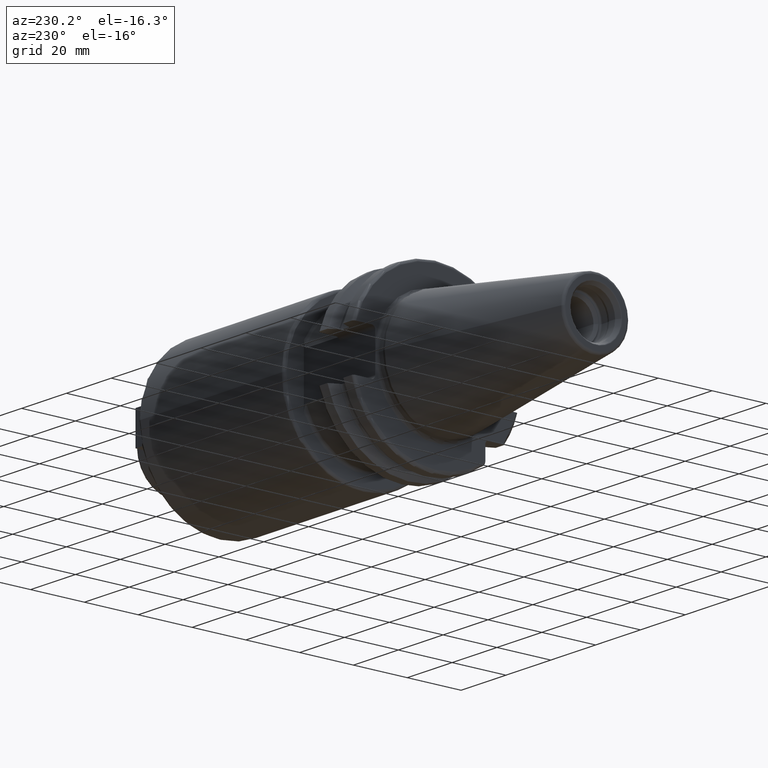
[diagram: clean part render]
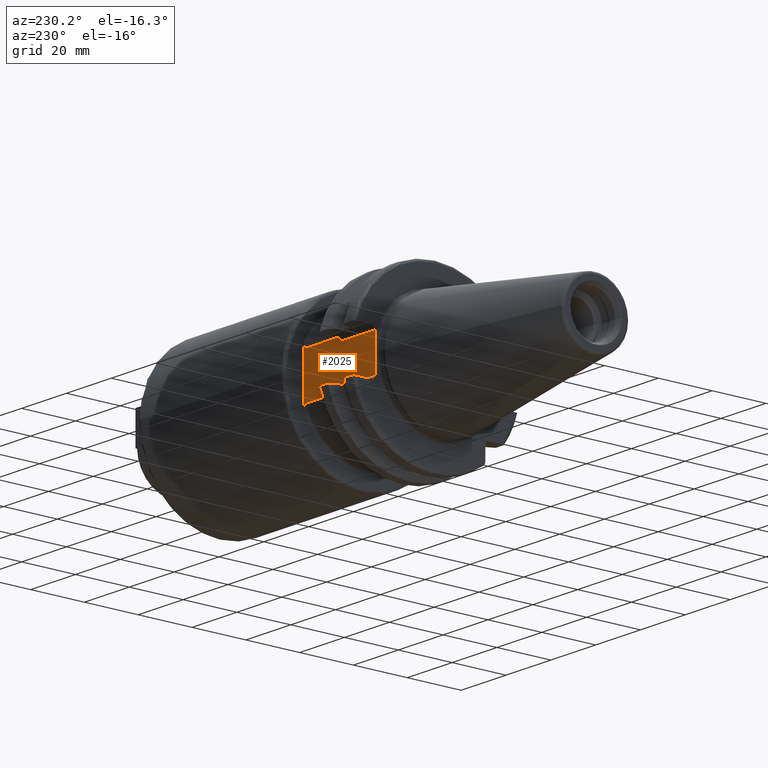
[diagram: same view with one face highlighted and labeled with its STEP entity id]
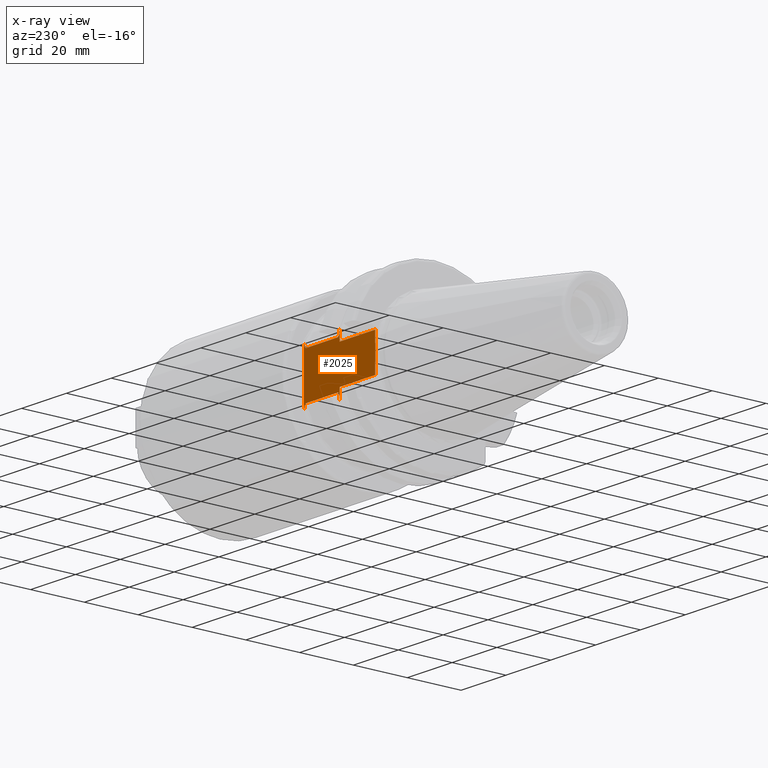
[diagram: x-ray of the same camera — body ghosted, the highlighted face saturated]
A machine part, auxiliary view. The second image highlights one B-rep face of the part: STEP entity #2025.
The next image is the same camera in x-ray: the body ghosted, the highlighted face saturated — about 0% of this face is hidden behind the body in this view.
In plain terms, the highlighted planar face has unit normal (0, -1, 0).
Its self-contained STEP definition (entity closure, byte-faithful):
#96=CARTESIAN_POINT('',(3.145714015969E0,2.255E1,0.E0));
#97=CARTESIAN_POINT('',(3.145714015969E0,2.255E1,-1.830251188857E-1));
#98=CARTESIAN_POINT('',(3.147263299438E0,2.255E1,-5.490774984715E-1));
#99=CARTESIAN_POINT('',(3.153915624300E0,2.255E1,-1.098219783342E0));
#100=CARTESIAN_POINT('',(3.163955531798E0,2.255E1,-1.647254187265E0));
#101=CARTESIAN_POINT('',(3.175890292850E0,2.255E1,-2.196155647006E0));
#102=CARTESIAN_POINT('',(3.187756155044E0,2.255E1,-2.744876756971E0));
#103=CARTESIAN_POINT('',(3.197183898560E0,2.255E1,-3.293518646440E0));
#104=CARTESIAN_POINT('',(3.2E0,2.255E1,-3.659354563864E0));
#105=CARTESIAN_POINT('',(3.2E0,2.255E1,-3.842281223440E0));
#122=DIRECTION('',(-1.E0,0.E0,0.E0));
#123=VECTOR('',#122,1.585E1);
#124=CARTESIAN_POINT('',(1.905E1,2.255E1,-6.75E0));
#125=LINE('',#124,#123);
#126=DIRECTION('',(0.E0,0.E0,1.E0));
#127=VECTOR('',#126,4.043400761576E0);
#128=CARTESIAN_POINT('',(1.905E1,2.255E1,-1.079340076158E1));
#129=LINE('',#128,#127);
#130=DIRECTION('',(0.E0,0.E0,-1.E0));
#131=VECTOR('',#130,2.158680152315E1);
#132=CARTESIAN_POINT('',(3.505E1,2.255E1,1.079340076158E1));
#133=LINE('',#132,#131);
#134=DIRECTION('',(0.E0,0.E0,1.E0));
#135=VECTOR('',#134,4.043400761576E0);
#136=CARTESIAN_POINT('',(1.905E1,2.255E1,6.75E0));
#137=LINE('',#136,#135);
#138=DIRECTION('',(-1.E0,0.E0,0.E0));
#139=VECTOR('',#138,1.585E1);
#140=CARTESIAN_POINT('',(1.905E1,2.255E1,6.75E0));
#141=LINE('',#140,#139);
#257=CARTESIAN_POINT('',(1.905E1,2.255E1,-1.079340076158E1));
#258=CARTESIAN_POINT('',(1.905E1,2.255E1,-1.067524645861E1));
#259=CARTESIAN_POINT('',(1.905776470529E1,2.255E1,-1.045169118894E1));
#260=CARTESIAN_POINT('',(1.908423086458E1,2.255E1,-1.015791501522E1));
#261=CARTESIAN_POINT('',(1.912074241589E1,2.255E1,-9.895698204742E0));
#262=CARTESIAN_POINT('',(1.916451389638E1,2.255E1,-9.660245664053E0));
#263=CARTESIAN_POINT('',(1.921410330104E1,2.255E1,-9.446320932755E0));
#264=CARTESIAN_POINT('',(1.926939222094E1,2.255E1,-9.248543017009E0));
#265=CARTESIAN_POINT('',(1.933131391189E1,2.255E1,-9.061909855082E0));
#266=CARTESIAN_POINT('',(1.940280195511E1,2.255E1,-8.880615510960E0));
#267=CARTESIAN_POINT('',(1.948491415491E1,2.255E1,-8.707599855596E0));
#268=CARTESIAN_POINT('',(1.958076587200E1,2.255E1,-8.544461389586E0));
#269=CARTESIAN_POINT('',(1.968864407962E1,2.255E1,-8.403991535915E0));
#270=CARTESIAN_POINT('',(1.980255663820E1,2.255E1,-8.299106190197E0));
#271=CARTESIAN_POINT('',(1.992150016334E1,2.255E1,-8.232421220631E0));
#272=CARTESIAN_POINT('',(2.000635285926E1,2.255E1,-8.215686216014E0));
#273=CARTESIAN_POINT('',(2.005E1,2.255E1,-8.215686216014E0));
#282=CARTESIAN_POINT('',(2.005E1,2.255E1,8.215686216014E0));
#283=CARTESIAN_POINT('',(2.000510435517E1,2.255E1,8.215686216014E0));
#284=CARTESIAN_POINT('',(1.991877885966E1,2.255E1,8.233397581544E0));
#285=CARTESIAN_POINT('',(1.980071604292E1,2.255E1,8.300675467542E0));
#286=CARTESIAN_POINT('',(1.969042076664E1,2.255E1,8.402872130424E0));
#287=CARTESIAN_POINT('',(1.959123851755E1,2.255E1,8.530040468406E0));
#288=CARTESIAN_POINT('',(1.949890819940E1,2.255E1,8.681500977450E0));
#289=CARTESIAN_POINT('',(1.941221179010E1,2.255E1,8.858241118648E0));
#290=CARTESIAN_POINT('',(1.933279054291E1,2.255E1,9.056354958018E0));
#291=CARTESIAN_POINT('',(1.926108499162E1,2.255E1,9.273828169288E0));
#292=CARTESIAN_POINT('',(1.919616230750E1,2.255E1,9.515706891325E0));
#293=CARTESIAN_POINT('',(1.913922603864E1,2.255E1,9.784765902659E0));
#294=CARTESIAN_POINT('',(1.909245654326E1,2.255E1,1.008395473120E1));
#295=CARTESIAN_POINT('',(1.905932900643E1,2.255E1,1.041646377505E1));
#296=CARTESIAN_POINT('',(1.905E1,2.255E1,1.066367889646E1));
#297=CARTESIAN_POINT('',(1.905E1,2.255E1,1.079340076158E1));
#299=DIRECTION('',(1.E0,0.E0,0.E0));
#300=VECTOR('',#299,1.4E1);
#301=CARTESIAN_POINT('',(2.005E1,2.255E1,-8.215686216014E0));
#302=LINE('',#301,#300);
#308=DIRECTION('',(1.E0,0.E0,0.E0));
#309=VECTOR('',#308,1.4E1);
#310=CARTESIAN_POINT('',(2.005E1,2.255E1,8.215686216014E0));
#311=LINE('',#310,#309);
#317=CARTESIAN_POINT('',(3.405E1,2.255E1,-8.215686216014E0));
#318=CARTESIAN_POINT('',(3.409485692528E1,2.255E1,-8.215686216014E0));
#319=CARTESIAN_POINT('',(3.418111432817E1,2.255E1,-8.233359160860E0));
#320=CARTESIAN_POINT('',(3.429918777525E1,2.255E1,-8.300609348068E0));
#321=CARTESIAN_POINT('',(3.440934569569E1,2.255E1,-8.402638185817E0));
#322=CARTESIAN_POINT('',(3.450840546952E1,2.255E1,-8.529522636677E0));
#323=CARTESIAN_POINT('',(3.460085928732E1,2.255E1,-8.681059036321E0));
#324=CARTESIAN_POINT('',(3.468761798677E1,2.255E1,-8.857858236956E0));
#325=CARTESIAN_POINT('',(3.476702096657E1,2.255E1,-9.055842267817E0));
#326=CARTESIAN_POINT('',(3.483873839740E1,2.255E1,-9.273234662222E0));
#327=CARTESIAN_POINT('',(3.490369623184E1,2.255E1,-9.515110804694E0));
#328=CARTESIAN_POINT('',(3.496067428796E1,2.255E1,-9.784213507915E0));
#329=CARTESIAN_POINT('',(3.500748869035E1,2.255E1,-1.008350157967E1));
#330=CARTESIAN_POINT('',(3.504065797954E1,2.255E1,-1.041620574631E1));
#331=CARTESIAN_POINT('',(3.505E1,2.255E1,-1.066358548389E1));
#332=CARTESIAN_POINT('',(3.505E1,2.255E1,-1.079340076158E1));
#339=CARTESIAN_POINT('',(3.505E1,2.255E1,1.079340076158E1));
#340=CARTESIAN_POINT('',(3.505E1,2.255E1,1.067530185710E1));
#341=CARTESIAN_POINT('',(3.504225638193E1,2.255E1,1.045165092098E1));
#342=CARTESIAN_POINT('',(3.501558020453E1,2.255E1,1.015607594301E1));
#343=CARTESIAN_POINT('',(3.497890685940E1,2.255E1,9.893517108764E0));
#344=CARTESIAN_POINT('',(3.493495239108E1,2.255E1,9.657651385142E0));
#345=CARTESIAN_POINT('',(3.488520557379E1,2.255E1,9.443607565261E0));
#346=CARTESIAN_POINT('',(3.482981769798E1,2.255E1,9.245960836234E0));
#347=CARTESIAN_POINT('',(3.476790122246E1,2.255E1,9.059767429023E0));
#348=CARTESIAN_POINT('',(3.469654709696E1,2.255E1,8.879142352562E0));
#349=CARTESIAN_POINT('',(3.461461893364E1,2.255E1,8.706751942399E0));
#350=CARTESIAN_POINT('',(3.451902188058E1,2.255E1,8.544168299119E0));
#351=CARTESIAN_POINT('',(3.441118750784E1,2.255E1,8.403799611224E0));
#352=CARTESIAN_POINT('',(3.429721368346E1,2.255E1,8.298934054707E0));
#353=CARTESIAN_POINT('',(3.417831283112E1,2.255E1,8.232364017521E0));
#354=CARTESIAN_POINT('',(3.409357139478E1,2.255E1,8.215686216014E0));
#355=CARTESIAN_POINT('',(3.405E1,2.255E1,8.215686216014E0));
#677=DIRECTION('',(0.E0,0.E0,-1.E0));
#678=VECTOR('',#677,2.907718776560E0);
#679=CARTESIAN_POINT('',(3.2E0,2.255E1,6.75E0));
#680=LINE('',#679,#678);
#724=DIRECTION('',(0.E0,0.E0,-1.E0));
#725=VECTOR('',#724,2.907718776560E0);
#726=CARTESIAN_POINT('',(3.2E0,2.255E1,-3.842281223440E0));
#727=LINE('',#726,#725);
#1298=CARTESIAN_POINT('',(3.2E0,2.255E1,3.842281223440E0));
#1299=CARTESIAN_POINT('',(3.2E0,2.255E1,3.659346360345E0));
#1300=CARTESIAN_POINT('',(3.197183660273E0,2.255E1,3.293495674472E0));
#1301=CARTESIAN_POINT('',(3.187755287998E0,2.255E1,2.744832710969E0));
#1302=CARTESIAN_POINT('',(3.175889115457E0,2.255E1,2.196103113875E0));
#1303=CARTESIAN_POINT('',(3.163954665645E0,2.255E1,1.647211248391E0));
#1304=CARTESIAN_POINT('',(3.153915287595E0,2.255E1,1.098195325368E0));
#1305=CARTESIAN_POINT('',(3.147263292433E0,2.255E1,5.490722257557E-1));
#1306=CARTESIAN_POINT('',(3.145714015969E0,2.255E1,1.830242653455E-1));
#1307=CARTESIAN_POINT('',(3.145714015969E0,2.255E1,0.E0));
#1674=VERTEX_POINT('',#1298);
#1675=VERTEX_POINT('',#1307);
#1676=VERTEX_POINT('',#105);
#1731=CARTESIAN_POINT('',(3.2E0,2.255E1,6.75E0));
#1732=VERTEX_POINT('',#1731);
#1733=CARTESIAN_POINT('',(3.2E0,2.255E1,-6.75E0));
#1734=VERTEX_POINT('',#1733);
#1824=CARTESIAN_POINT('',(2.005E1,2.255E1,8.215686216014E0));
#1825=CARTESIAN_POINT('',(3.405E1,2.255E1,8.215686216014E0));
#1826=VERTEX_POINT('',#1824);
#1827=VERTEX_POINT('',#1825);
#1828=CARTESIAN_POINT('',(2.005E1,2.255E1,-8.215686216014E0));
#1829=CARTESIAN_POINT('',(3.405E1,2.255E1,-8.215686216014E0));
#1830=VERTEX_POINT('',#1828);
#1831=VERTEX_POINT('',#1829);
#1832=VERTEX_POINT('',#257);
#1833=VERTEX_POINT('',#297);
#1834=CARTESIAN_POINT('',(1.905E1,2.255E1,-6.75E0));
#1835=VERTEX_POINT('',#1834);
#1836=CARTESIAN_POINT('',(1.905E1,2.255E1,6.75E0));
#1837=VERTEX_POINT('',#1836);
#1838=CARTESIAN_POINT('',(3.505E1,2.255E1,1.079340076158E1));
#1839=CARTESIAN_POINT('',(3.505E1,2.255E1,-1.079340076158E1));
#1840=VERTEX_POINT('',#1838);
#1841=VERTEX_POINT('',#1839);
#1989=CARTESIAN_POINT('',(1.905E1,2.255E1,8.1E0));
#1990=DIRECTION('',(0.E0,-1.E0,0.E0));
#1991=DIRECTION('',(0.E0,0.E0,-1.E0));
#1992=AXIS2_PLACEMENT_3D('',#1989,#1990,#1991);
#1993=PLANE('',#1992);
#1995=ORIENTED_EDGE('',*,*,#1994,.F.);
#1997=ORIENTED_EDGE('',*,*,#1996,.F.);
#1999=ORIENTED_EDGE('',*,*,#1998,.T.);
#2001=ORIENTED_EDGE('',*,*,#2000,.T.);
#2003=ORIENTED_EDGE('',*,*,#2002,.T.);
#2005=ORIENTED_EDGE('',*,*,#2004,.F.);
#2007=ORIENTED_EDGE('',*,*,#2006,.T.);
#2009=ORIENTED_EDGE('',*,*,#2008,.F.);
#2011=ORIENTED_EDGE('',*,*,#2010,.T.);
#2013=ORIENTED_EDGE('',*,*,#2012,.F.);
#2015=ORIENTED_EDGE('',*,*,#2014,.T.);
#2017=ORIENTED_EDGE('',*,*,#2016,.T.);
#2019=ORIENTED_EDGE('',*,*,#2018,.T.);
#2020=ORIENTED_EDGE('',*,*,#1977,.T.);
#2022=ORIENTED_EDGE('',*,*,#2021,.T.);
#2023=EDGE_LOOP('',(#1995,#1997,#1999,#2001,#2003,#2005,#2007,#2009,#2011,#2013,
#2015,#2017,#2019,#2020,#2022));
#2024=FACE_OUTER_BOUND('',#2023,.F.);
#2025=ADVANCED_FACE('',(#2024),#1993,.F.);
#106=B_SPLINE_CURVE_WITH_KNOTS('',3,(#96,#97,#98,#99,#100,#101,#102,#103,#104,
#105),.UNSPECIFIED.,.F.,.F.,(4,1,1,1,1,1,1,4),(0.E0,1.428571428571E-1,
2.857142857143E-1,4.285714285714E-1,5.714285714286E-1,7.142857142857E-1,
8.571428571429E-1,1.E0),.UNSPECIFIED.);
#274=B_SPLINE_CURVE_WITH_KNOTS('',3,(#257,#258,#259,#260,#261,#262,#263,#264,
#265,#266,#267,#268,#269,#270,#271,#272,#273),.UNSPECIFIED.,.F.,.F.,(4,1,1,1,1,
1,1,1,1,1,1,1,1,1,4),(0.E0,7.142857142857E-2,1.428571428571E-1,
2.142857142857E-1,2.857142857143E-1,3.571428571429E-1,4.285714285714E-1,5.E-1,
5.714285714286E-1,6.428571428571E-1,7.142857142857E-1,7.857142857143E-1,
8.571428571429E-1,9.285714285714E-1,1.E0),.UNSPECIFIED.);
#298=B_SPLINE_CURVE_WITH_KNOTS('',3,(#282,#283,#284,#285,#286,#287,#288,#289,
#290,#291,#292,#293,#294,#295,#296,#297),.UNSPECIFIED.,.F.,.F.,(4,1,1,1,1,1,1,1,
1,1,1,1,1,4),(0.E0,7.692307692308E-2,1.538461538462E-1,2.307692307692E-1,
3.076923076923E-1,3.846153846154E-1,4.615384615385E-1,5.384615384615E-1,
6.153846153846E-1,6.923076923077E-1,7.692307692308E-1,8.461538461538E-1,
9.230769230769E-1,1.E0),.UNSPECIFIED.);
#333=B_SPLINE_CURVE_WITH_KNOTS('',3,(#317,#318,#319,#320,#321,#322,#323,#324,
#325,#326,#327,#328,#329,#330,#331,#332),.UNSPECIFIED.,.F.,.F.,(4,1,1,1,1,1,1,1,
1,1,1,1,1,4),(0.E0,7.692307692308E-2,1.538461538462E-1,2.307692307692E-1,
3.076923076923E-1,3.846153846154E-1,4.615384615385E-1,5.384615384615E-1,
6.153846153846E-1,6.923076923077E-1,7.692307692308E-1,8.461538461538E-1,
9.230769230769E-1,1.E0),.UNSPECIFIED.);
#356=B_SPLINE_CURVE_WITH_KNOTS('',3,(#339,#340,#341,#342,#343,#344,#345,#346,
#347,#348,#349,#350,#351,#352,#353,#354,#355),.UNSPECIFIED.,.F.,.F.,(4,1,1,1,1,
1,1,1,1,1,1,1,1,1,4),(0.E0,7.142857142857E-2,1.428571428571E-1,
2.142857142857E-1,2.857142857143E-1,3.571428571429E-1,4.285714285714E-1,5.E-1,
5.714285714286E-1,6.428571428571E-1,7.142857142857E-1,7.857142857143E-1,
8.571428571429E-1,9.285714285714E-1,1.E0),.UNSPECIFIED.);
#1308=B_SPLINE_CURVE_WITH_KNOTS('',3,(#1298,#1299,#1300,#1301,#1302,#1303,#1304,
#1305,#1306,#1307),.UNSPECIFIED.,.F.,.F.,(4,1,1,1,1,1,1,4),(0.E0,
1.428571428571E-1,2.857142857143E-1,4.285714285714E-1,5.714285714286E-1,
7.142857142857E-1,8.571428571429E-1,1.E0),.UNSPECIFIED.);
#1977=EDGE_CURVE('',#1675,#1676,#106,.T.);
#1994=EDGE_CURVE('',#1835,#1734,#125,.T.);
#1996=EDGE_CURVE('',#1832,#1835,#129,.T.);
#1998=EDGE_CURVE('',#1832,#1830,#274,.T.);
#2000=EDGE_CURVE('',#1830,#1831,#302,.T.);
#2002=EDGE_CURVE('',#1831,#1841,#333,.T.);
#2004=EDGE_CURVE('',#1840,#1841,#133,.T.);
#2006=EDGE_CURVE('',#1840,#1827,#356,.T.);
#2008=EDGE_CURVE('',#1826,#1827,#311,.T.);
#2010=EDGE_CURVE('',#1826,#1833,#298,.T.);
#2012=EDGE_CURVE('',#1837,#1833,#137,.T.);
#2014=EDGE_CURVE('',#1837,#1732,#141,.T.);
#2016=EDGE_CURVE('',#1732,#1674,#680,.T.);
#2018=EDGE_CURVE('',#1674,#1675,#1308,.T.);
#2021=EDGE_CURVE('',#1676,#1734,#727,.T.);